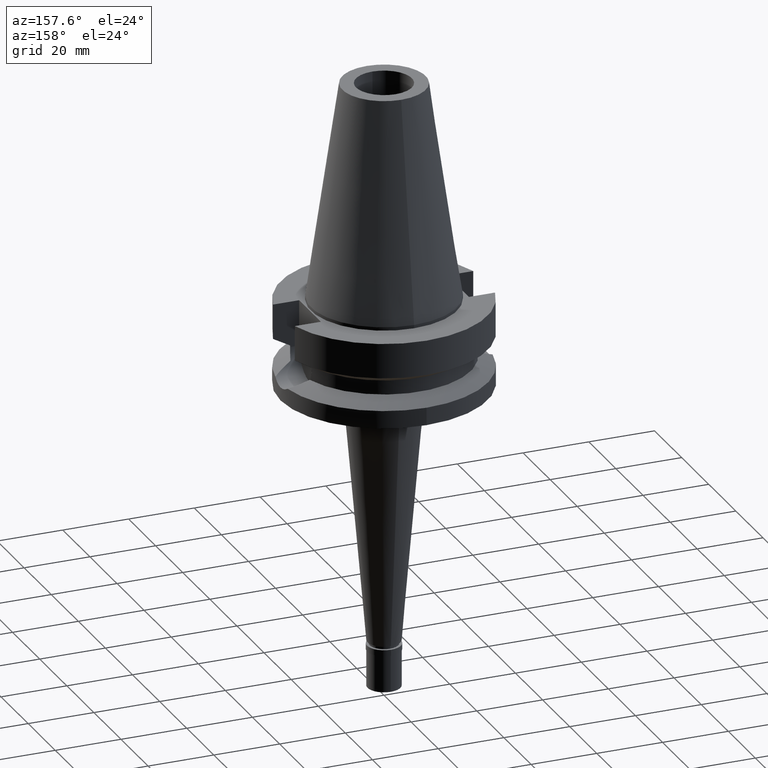
[diagram: clean part render]
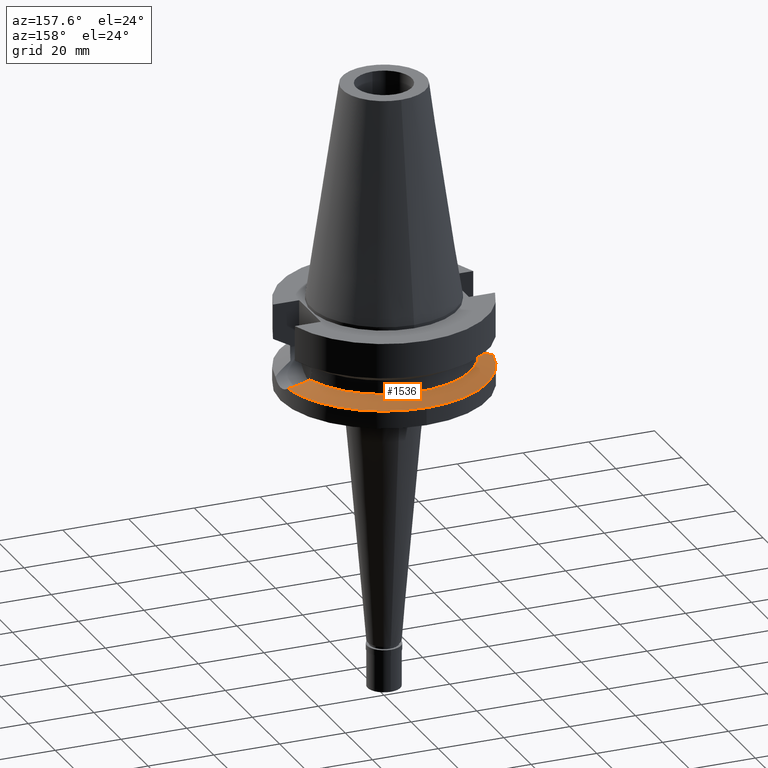
[diagram: same view with one face highlighted and labeled with its STEP entity id]
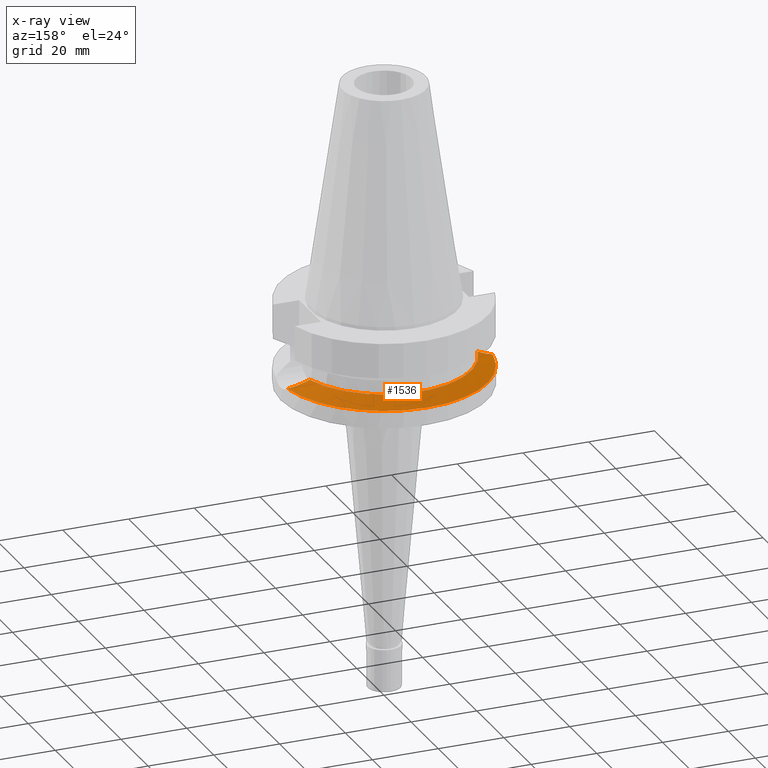
[diagram: x-ray of the same camera — body ghosted, the highlighted face saturated]
A machine part, auxiliary view. The second image highlights one B-rep face of the part: STEP entity #1536.
The next image is the same camera in x-ray: the body ghosted, the highlighted face saturated — about 0% of this face is hidden behind the body in this view.
In plain terms, the highlighted conical surface has half-angle 60 deg.
Its self-contained STEP definition (entity closure, byte-faithful):
#27 = EDGE_CURVE ( 'NONE', #170, #490, #2061, .T. ) ;
#59 = CARTESIAN_POINT ( 'NONE',  ( 28.75800248841782292, 5.924347059781765346, -20.40051087053129208 ) ) ;
#119 = DIRECTION ( 'NONE',  ( 0.0000000000000000000, 0.0000000000000000000, -1.000000000000000000 ) ) ;
#157 = ORIENTED_EDGE ( 'NONE', *, *, #2190, .F. ) ;
#170 = VERTEX_POINT ( 'NONE', #1307 ) ;
#232 = AXIS2_PLACEMENT_3D ( 'NONE', #1685, #298, #959 ) ;
#239 = CARTESIAN_POINT ( 'NONE',  ( 25.53175183775000079, 7.097862220092999941, -18.74774300138999905 ) ) ;
#268 = CARTESIAN_POINT ( 'NONE',  ( 30.81999228151673265, 4.757903206639950255, -21.45172630914032652 ) ) ;
#298 = DIRECTION ( 'NONE',  ( 0.0000000000000000000, 0.0000000000000000000, -1.000000000000000000 ) ) ;
#302 = DIRECTION ( 'NONE',  ( 0.0000000000000000000, 0.0000000000000000000, 1.000000000000000000 ) ) ;
#306 = CARTESIAN_POINT ( 'NONE',  ( 28.54753001531853585, 6.021222257131218392, -20.29297797577292073 ) ) ;
#393 = CARTESIAN_POINT ( 'NONE',  ( -31.17899877608999759, 4.485536235554000051, -21.63449434733000132 ) ) ;
#490 = VERTEX_POINT ( 'NONE', #1346 ) ;
#499 = CARTESIAN_POINT ( 'NONE',  ( 28.56385234943621754, 6.013811344474633280, -20.30131799021839711 ) ) ;
#528 = VERTEX_POINT ( 'NONE', #1362 ) ;
#536 = CARTESIAN_POINT ( 'NONE',  ( 26.66936599658097862, 6.785151581634380591, -19.33218934905202602 ) ) ;
#618 = CARTESIAN_POINT ( 'NONE',  ( -31.17899877608999759, 4.485536235554000051, -21.63449434733000132 ) ) ;
#690 = CARTESIAN_POINT ( 'NONE',  ( -27.58507247363496973, 6.426714965807631685, -19.80076789930221537 ) ) ;
#710 = CIRCLE ( 'NONE', #756, 26.49999999999998224 ) ;
#728 = CARTESIAN_POINT ( 'NONE',  ( 29.16510401091243310, 5.726476134249019800, -20.60841185234341211 ) ) ;
#756 = AXIS2_PLACEMENT_3D ( 'NONE', #2316, #302, #1441 ) ;
#766 = CARTESIAN_POINT ( 'NONE',  ( 29.52694305662873830, 5.539987577063418378, -20.79308583485124018 ) ) ;
#800 = DIRECTION ( 'NONE',  ( -0.9898094849552905306, 0.1423979757318985240, 0.0000000000000000000 ) ) ;
#845 = CARTESIAN_POINT ( 'NONE',  ( 0.0000000000000000000, 0.0000000000000000000, -20.19111867435999841 ) ) ;
#906 = DIRECTION ( 'NONE',  ( 0.0000000000000000000, 0.0000000000000000000, -1.000000000000000000 ) ) ;
#915 = CARTESIAN_POINT ( 'NONE',  ( -28.59591203987936225, 6.000107377297209332, -20.31730824244572275 ) ) ;
#959 = DIRECTION ( 'NONE',  ( 0.0000000000000000000, 1.000000000000000000, 0.0000000000000000000 ) ) ;
#987 = CONICAL_SURFACE ( 'NONE', #1187, 29.00000000000000000, 1.047197551196400456 ) ;
#1057 = CARTESIAN_POINT ( 'NONE',  ( -25.53175183775000079, 7.097862220092999941, -18.74774300138999905 ) ) ;
#1137 = DIRECTION ( 'NONE',  ( 0.0000000000000000000, -1.000000000000000000, 0.0000000000000000000 ) ) ;
#1187 = AXIS2_PLACEMENT_3D ( 'NONE', #845, #906, #1137 ) ;
#1198 = CARTESIAN_POINT ( 'NONE',  ( 28.53791194138940313, 6.025578760142479950, -20.28806348014120431 ) ) ;
#1261 = ORIENTED_EDGE ( 'NONE', *, *, #27, .F. ) ;
#1307 = CARTESIAN_POINT ( 'NONE',  ( 0.0000000000000000000, 31.50000000000000000, -21.63449434733000132 ) ) ;
#1335 = CARTESIAN_POINT ( 'NONE',  ( -30.52782424915380943, 4.979561932100548205, -21.30298532839923809 ) ) ;
#1346 = CARTESIAN_POINT ( 'NONE',  ( 31.17899877608999759, 4.485536235554000051, -21.63449434733000132 ) ) ;
#1362 = CARTESIAN_POINT ( 'NONE',  ( -25.53175183775000079, 7.097862220092999941, -18.74774300138999905 ) ) ;
#1366 = CARTESIAN_POINT ( 'NONE',  ( -28.35328553111816774, 6.108691177845285480, -20.19339378668410490 ) ) ;
#1418 = AXIS2_PLACEMENT_3D ( 'NONE', #1762, #119, #800 ) ;
#1441 = DIRECTION ( 'NONE',  ( 0.9634623335000935818, 0.2678438573619981722, 0.0000000000000000000 ) ) ;
#1536 = ADVANCED_FACE ( 'NONE', ( #2447 ), #987, .T. ) ;
#1593 = VERTEX_POINT ( 'NONE', #239 ) ;
#1594 = CARTESIAN_POINT ( 'NONE',  ( -28.71615808046020746, 5.944575205312181865, -20.37870989948180167 ) ) ;
#1635 = CARTESIAN_POINT ( 'NONE',  ( 28.64515259322142882, 5.976659506755554574, -20.34285726340844747 ) ) ;
#1685 = CARTESIAN_POINT ( 'NONE',  ( 0.0000000000000000000, 0.0000000000000000000, -21.63449434733000132 ) ) ;
#1762 = CARTESIAN_POINT ( 'NONE',  ( 0.0000000000000000000, 0.0000000000000000000, -21.63449434733000132 ) ) ;
#1802 = CARTESIAN_POINT ( 'NONE',  ( -26.76039247247231501, 6.731320153968328945, -19.37857616433609564 ) ) ;
#1861 = CARTESIAN_POINT ( 'NONE',  ( 30.41983726481618788, 5.025205837847273038, -21.24819025546970153 ) ) ;
#1875 = CARTESIAN_POINT ( 'NONE',  ( 25.53175183775000079, 7.097862220092999941, -18.74774300138999905 ) ) ;
#1936 = ORIENTED_EDGE ( 'NONE', *, *, #2946, .F. ) ;
#1951 = B_SPLINE_CURVE_WITH_KNOTS ( 'NONE', 3,
 ( #2395, #268, #1861, #2382, #766, #728, #2607, #59, #1635, #2565, #499, #306, #1198, #2111, #536, #1875 ),
 .UNSPECIFIED., .F., .F.,
 ( 4, 2, 2, 1, 1, 1, 1, 2, 2, 4 ),
 ( 0.0000000000000000000, 0.2499999999999497069, 0.3749999999999243383, 0.4374999999999116262, 0.4687499999999054090, 0.4843749999999032996, 0.4921874999999024669, 0.4960937499999020783, 0.4999999999999016342, 1.000000000000000000 ),
 .UNSPECIFIED. ) ;
#1987 = EDGE_LOOP ( 'NONE', ( #1936, #2101, #2307, #1261, #157 ) ) ;
#2061 = CIRCLE ( 'NONE', #232, 31.50000000000000000 ) ;
#2101 = ORIENTED_EDGE ( 'NONE', *, *, #2606, .F. ) ;
#2111 = CARTESIAN_POINT ( 'NONE',  ( 27.66917456503869133, 6.418376857841932015, -19.84416478517469073 ) ) ;
#2146 = EDGE_CURVE ( 'NONE', #490, #1593, #1951, .T. ) ;
#2190 = EDGE_CURVE ( 'NONE', #2251, #170, #2339, .T. ) ;
#2251 = VERTEX_POINT ( 'NONE', #618 ) ;
#2307 = ORIENTED_EDGE ( 'NONE', *, *, #2146, .F. ) ;
#2316 = CARTESIAN_POINT ( 'NONE',  ( 0.0000000000000000000, 0.0000000000000000000, -18.74774300138999905 ) ) ;
#2339 = CIRCLE ( 'NONE', #1418, 31.50000000000001421 ) ;
#2382 = CARTESIAN_POINT ( 'NONE',  ( 29.75788195657446167, 5.412948537165314988, -20.91085872049545458 ) ) ;
#2395 = CARTESIAN_POINT ( 'NONE',  ( 31.17899877608999759, 4.485536235554000051, -21.63449434733000132 ) ) ;
#2447 = FACE_OUTER_BOUND ( 'NONE', #1987, .T. ) ;
#2479 = CARTESIAN_POINT ( 'NONE',  ( -29.74498193792402034, 5.455127447679509523, -20.90411449063447691 ) ) ;
#2560 = B_SPLINE_CURVE_WITH_KNOTS ( 'NONE', 3,
 ( #1057, #2748, #1802, #690, #2715, #2941, #1366, #915, #1594, #2479, #1335, #393 ),
 .UNSPECIFIED., .F., .F.,
 ( 4, 2, 2, 2, 2, 4 ),
 ( 0.0000000000000000000, 0.2499999999999980571, 0.3749999999999967804, 0.4374999999999963918, 0.4999999999999960032, 1.000000000000000000 ),
 .UNSPECIFIED. ) ;
#2565 = CARTESIAN_POINT ( 'NONE',  ( 28.58830571253500707, 6.002685528667256243, -20.31381245392876878 ) ) ;
#2606 = EDGE_CURVE ( 'NONE', #1593, #528, #710, .T. ) ;
#2607 = CARTESIAN_POINT ( 'NONE',  ( 28.98032681410483846, 5.818702372503646636, -20.51407218690409451 ) ) ;
#2715 = CARTESIAN_POINT ( 'NONE',  ( -27.84921019903596573, 6.322344492715082254, -19.93583774040437007 ) ) ;
#2748 = CARTESIAN_POINT ( 'NONE',  ( -26.16758337175095406, 6.923083026809107032, -19.07439981634536963 ) ) ;
#2941 = CARTESIAN_POINT ( 'NONE',  ( -28.22928337465760862, 6.162514296505769984, -20.13005279991560670 ) ) ;
#2946 = EDGE_CURVE ( 'NONE', #528, #2251, #2560, .T. ) ;